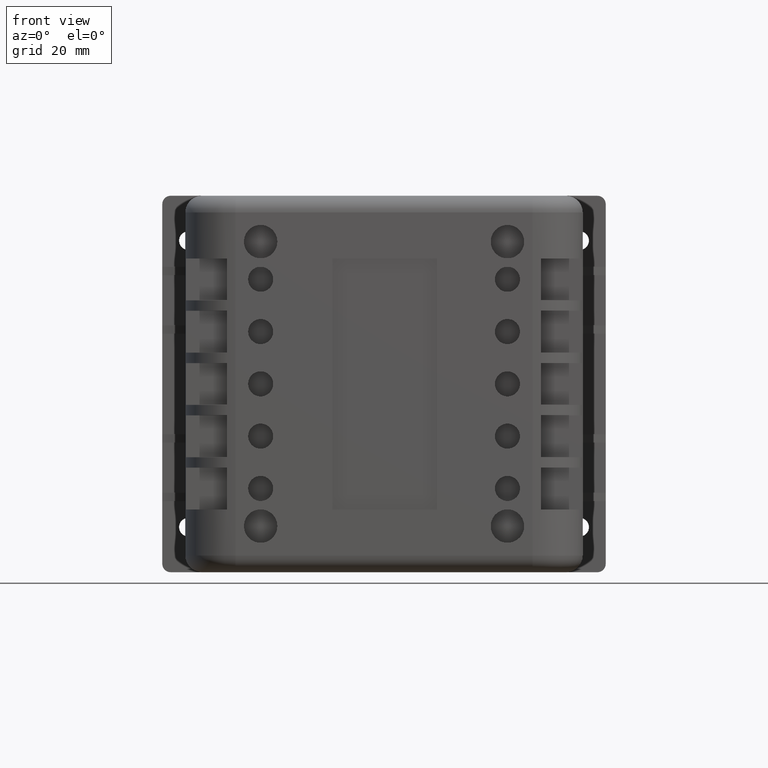
[diagram: clean part render]
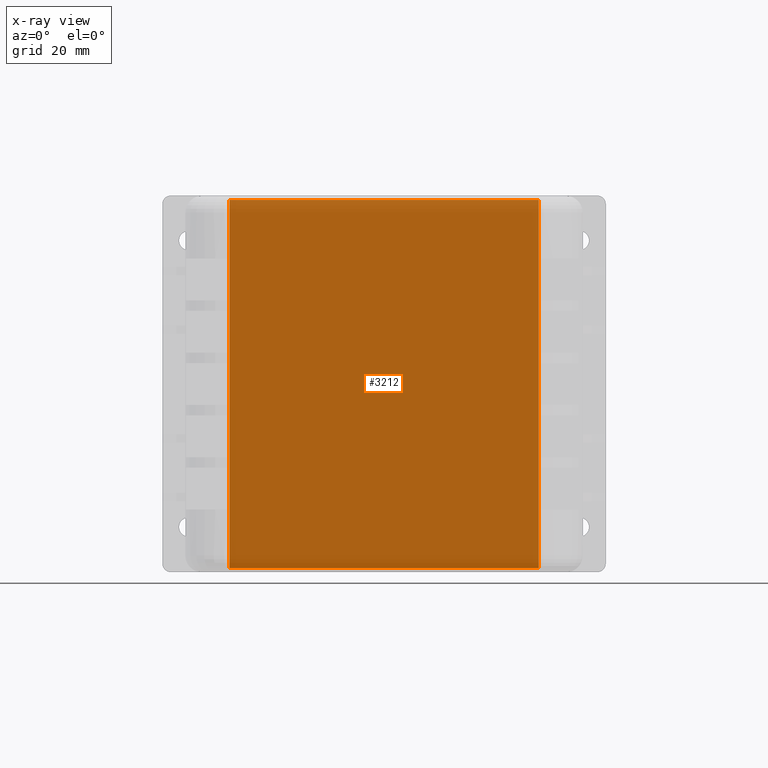
[diagram: x-ray — body ghosted, one internal face saturated and labeled with its STEP entity id]
A machine part, front view, then the same camera in x-ray: the body is ghosted and one INTERNAL B-rep face — a face not visible from any outside direction — is saturated and labeled: STEP entity #3212.
In plain terms, the highlighted planar face has unit normal (-0, -1, -0).
Its self-contained STEP definition (entity closure, byte-faithful):
#343=FACE_OUTER_BOUND('',#561,.T.);
#561=EDGE_LOOP('',(#2420,#2421,#2422,#2423));
#794=LINE('',#5084,#1098);
#798=LINE('',#5092,#1102);
#801=LINE('',#5098,#1105);
#804=LINE('',#5103,#1108);
#1098=VECTOR('',#4206,10.);
#1102=VECTOR('',#4212,10.);
#1105=VECTOR('',#4217,10.);
#1108=VECTOR('',#4222,10.);
#1394=VERTEX_POINT('',#5082);
#1395=VERTEX_POINT('',#5083);
#1398=VERTEX_POINT('',#5091);
#1400=VERTEX_POINT('',#5097);
#1742=EDGE_CURVE('',#1394,#1395,#794,.T.);
#1746=EDGE_CURVE('',#1395,#1398,#798,.T.);
#1749=EDGE_CURVE('',#1398,#1400,#801,.T.);
#1752=EDGE_CURVE('',#1400,#1394,#804,.T.);
#2420=ORIENTED_EDGE('',*,*,#1742,.T.);
#2421=ORIENTED_EDGE('',*,*,#1746,.T.);
#2422=ORIENTED_EDGE('',*,*,#1749,.T.);
#2423=ORIENTED_EDGE('',*,*,#1752,.T.);
#2845=PLANE('',#3586);
#3212=ADVANCED_FACE('',(#343),#2845,.T.);
#3586=AXIS2_PLACEMENT_3D('',#5152,#4261,#4262);
#4206=DIRECTION('',(1.,0.,-4.80096443080865E-16));
#4212=DIRECTION('',(-8.27065688661983E-13,0.,-1.));
#4217=DIRECTION('',(-1.,0.,9.83496317419428E-13));
#4222=DIRECTION('',(2.01858731749995E-16,0.,1.));
#4261=DIRECTION('center_axis',(0.,1.,0.));
#4262=DIRECTION('ref_axis',(0.,0.,1.));
#5082=CARTESIAN_POINT('',(-90.,5.,89.0000000000437));
#5083=CARTESIAN_POINT('',(-15.9999999999563,5.,89.0000000000437));
#5084=CARTESIAN_POINT('',(-34.4999999999781,5.,89.0000000000437));
#5091=CARTESIAN_POINT('',(-16.0000000000291,5.,0.999999999956322));
#5092=CARTESIAN_POINT('',(-16.0000000000109,5.,22.9999999999629));
#5097=CARTESIAN_POINT('',(-90.,5.,1.0000000000291));
#5098=CARTESIAN_POINT('',(-71.5000000000216,5.,1.00000000001091));
#5103=CARTESIAN_POINT('',(-90.,5.,67.0000000000218));
#5152=CARTESIAN_POINT('Origin',(-53.,5.,45.));